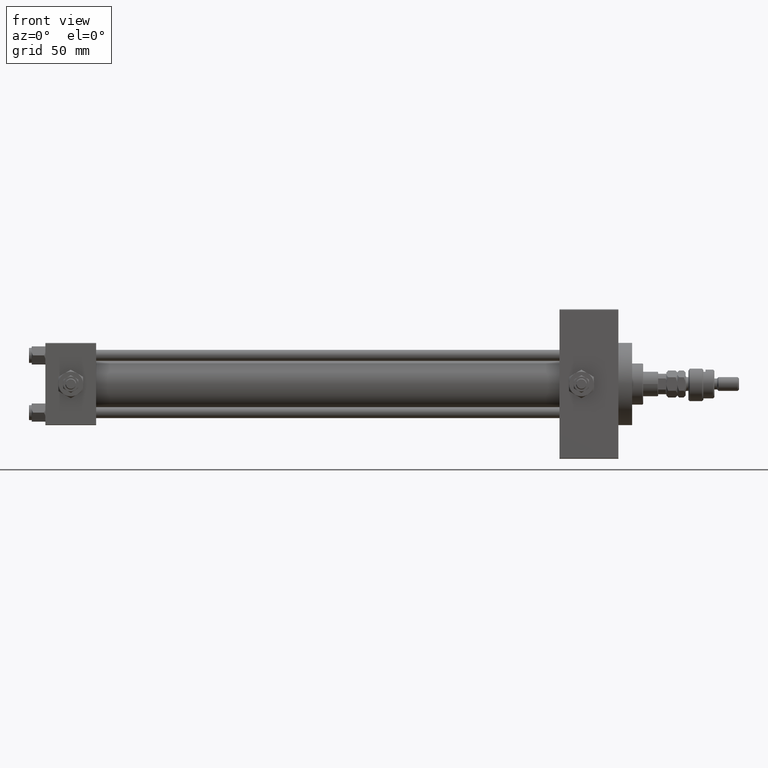
[diagram: clean part render]
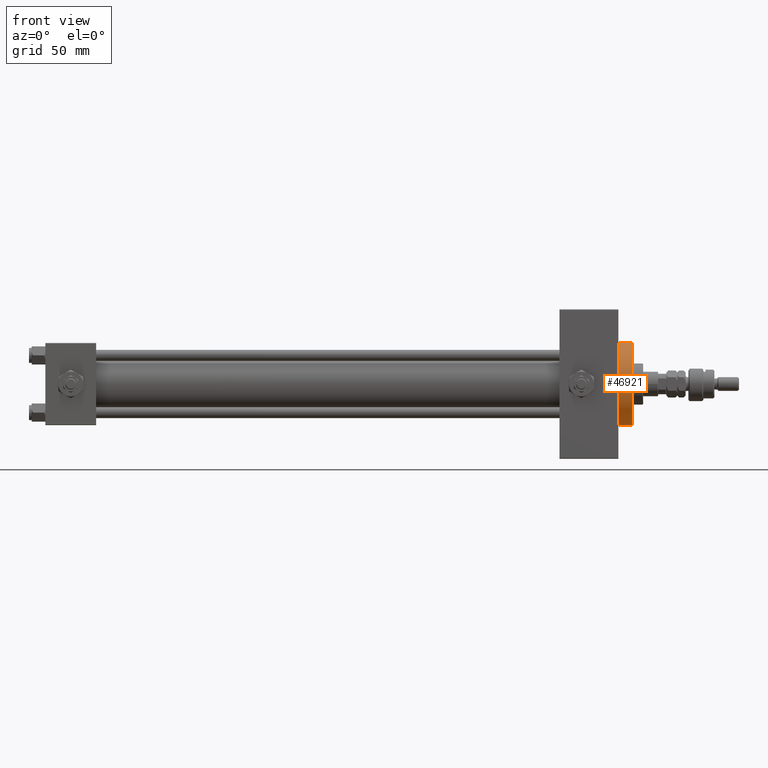
[diagram: same view with one face highlighted and labeled with its STEP entity id]
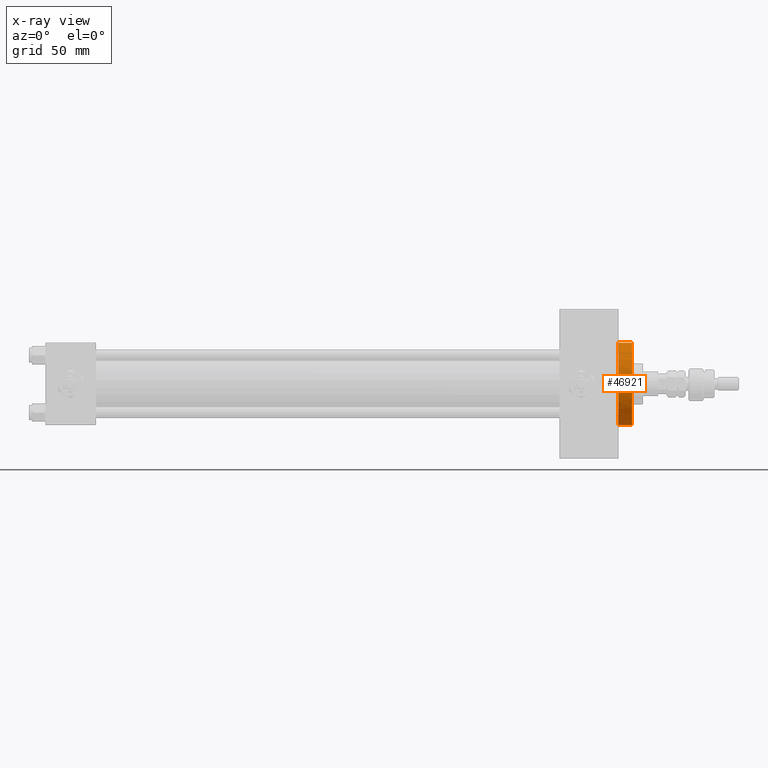
[diagram: x-ray of the same camera — body ghosted, the highlighted face saturated]
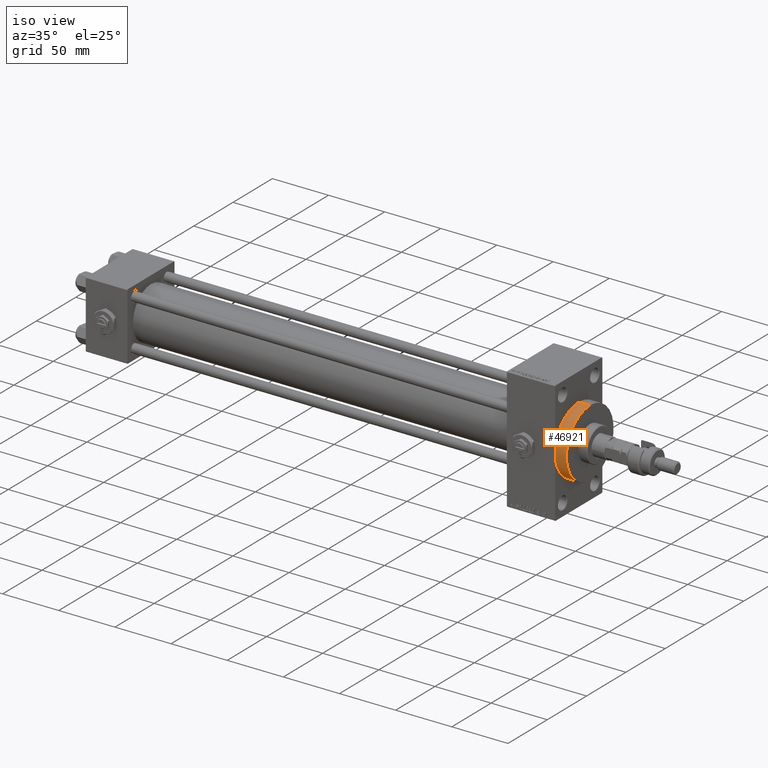
[diagram: same view with one face highlighted and labeled with its STEP entity id]
A machine part, front view. The second image highlights one B-rep face of the part: STEP entity #46921.
The next image is the same camera in x-ray: the body ghosted, the highlighted face saturated — about 0% of this face is hidden behind the body in this view.
A second angle (iso view) of the same face is appended — the face is thin or edge-on in the first view.
In plain terms, the highlighted cylindrical surface (partial cylindrical patch) has radius 30 mm, axis along (-1, -0, -0).
Its self-contained STEP definition (entity closure, byte-faithful):
#910 = CARTESIAN_POINT ( 'NONE',  ( 418.0000000000000000, 0.000000000000000000, 0.000000000000000000 ) ) ;
#2996 = VERTEX_POINT ( 'NONE', #30648 ) ;
#5102 = CARTESIAN_POINT ( 'NONE',  ( 428.0000000000000000, 0.000000000000000000, 30.00000000000000000 ) ) ;
#5960 = VERTEX_POINT ( 'NONE', #5102 ) ;
#6351 = AXIS2_PLACEMENT_3D ( 'NONE', #910, #16998, #9347 ) ;
#6657 = EDGE_CURVE ( 'NONE', #39877, #41133, #48592, .T. ) ;
#7053 = DIRECTION ( 'NONE',  ( 0.000000000000000000, 0.000000000000000000, -1.000000000000000000 ) ) ;
#8886 = CIRCLE ( 'NONE', #22487, 30.00000000000000000 ) ;
#9347 = DIRECTION ( 'NONE',  ( 0.000000000000000000, 0.000000000000000000, -1.000000000000000000 ) ) ;
#10084 = DIRECTION ( 'NONE',  ( -1.000000000000000000, -0.000000000000000000, -0.000000000000000000 ) ) ;
#11369 = VECTOR ( 'NONE', #36469, 1000.000000000000000 ) ;
#12239 = CIRCLE ( 'NONE', #6351, 30.00000000000000000 ) ;
#13215 = ORIENTED_EDGE ( 'NONE', *, *, #47724, .F. ) ;
#13518 = CARTESIAN_POINT ( 'NONE',  ( 428.0000000000000000, 0.000000000000000000, 30.00000000000000000 ) ) ;
#16711 = CIRCLE ( 'NONE', #20097, 30.00000000000000000 ) ;
#16998 = DIRECTION ( 'NONE',  ( 1.000000000000000000, 0.000000000000000000, 0.000000000000000000 ) ) ;
#17067 = EDGE_CURVE ( 'NONE', #2996, #35379, #16711, .T. ) ;
#17406 = ORIENTED_EDGE ( 'NONE', *, *, #17067, .T. ) ;
#20097 = AXIS2_PLACEMENT_3D ( 'NONE', #46837, #34728, #7053 ) ;
#22342 = CARTESIAN_POINT ( 'NONE',  ( 428.0000000000000000, 3.673940397442059178E-15, -30.00000000000000000 ) ) ;
#22487 = AXIS2_PLACEMENT_3D ( 'NONE', #27979, #28740, #40589 ) ;
#27135 = CARTESIAN_POINT ( 'NONE',  ( 428.0000000000000000, 0.000000000000000000, 0.000000000000000000 ) ) ;
#27979 = CARTESIAN_POINT ( 'NONE',  ( 428.0000000000000000, 0.000000000000000000, 0.000000000000000000 ) ) ;
#28740 = DIRECTION ( 'NONE',  ( 1.000000000000000000, 0.000000000000000000, 0.000000000000000000 ) ) ;
#30052 = CARTESIAN_POINT ( 'NONE',  ( 418.0000000000000000, -30.00000000000000000, 0.000000000000000000 ) ) ;
#30550 = FACE_OUTER_BOUND ( 'NONE', #49613, .T. ) ;
#30648 = CARTESIAN_POINT ( 'NONE',  ( 418.0000000000000000, 0.000000000000000000, 30.00000000000000000 ) ) ;
#30810 = DIRECTION ( 'NONE',  ( -1.000000000000000000, -0.000000000000000000, -0.000000000000000000 ) ) ;
#30811 = ORIENTED_EDGE ( 'NONE', *, *, #6657, .F. ) ;
#30855 = VECTOR ( 'NONE', #10084, 1000.000000000000000 ) ;
#32434 = EDGE_CURVE ( 'NONE', #35379, #41133, #12239, .T. ) ;
#33024 = CARTESIAN_POINT ( 'NONE',  ( 428.0000000000000000, 3.673940397442059178E-15, -30.00000000000000000 ) ) ;
#34728 = DIRECTION ( 'NONE',  ( 1.000000000000000000, 0.000000000000000000, 0.000000000000000000 ) ) ;
#34777 = CYLINDRICAL_SURFACE ( 'NONE', #49360, 30.00000000000000000 ) ;
#35379 = VERTEX_POINT ( 'NONE', #30052 ) ;
#36046 = ORIENTED_EDGE ( 'NONE', *, *, #46534, .T. ) ;
#36469 = DIRECTION ( 'NONE',  ( -1.000000000000000000, -0.000000000000000000, -0.000000000000000000 ) ) ;
#36535 = ORIENTED_EDGE ( 'NONE', *, *, #32434, .T. ) ;
#39877 = VERTEX_POINT ( 'NONE', #22342 ) ;
#40589 = DIRECTION ( 'NONE',  ( 0.000000000000000000, 0.000000000000000000, -1.000000000000000000 ) ) ;
#41133 = VERTEX_POINT ( 'NONE', #47048 ) ;
#42196 = LINE ( 'NONE', #13518, #30855 ) ;
#46534 = EDGE_CURVE ( 'NONE', #5960, #2996, #42196, .T. ) ;
#46837 = CARTESIAN_POINT ( 'NONE',  ( 418.0000000000000000, 0.000000000000000000, 0.000000000000000000 ) ) ;
#46921 = ADVANCED_FACE ( 'NONE', ( #30550 ), #34777, .T. ) ;
#47048 = CARTESIAN_POINT ( 'NONE',  ( 418.0000000000000000, 3.673940397442059178E-15, -30.00000000000000000 ) ) ;
#47724 = EDGE_CURVE ( 'NONE', #5960, #39877, #8886, .T. ) ;
#48592 = LINE ( 'NONE', #33024, #11369 ) ;
#49360 = AXIS2_PLACEMENT_3D ( 'NONE', #27135, #30810, #51361 ) ;
#49613 = EDGE_LOOP ( 'NONE', ( #30811, #13215, #36046, #17406, #36535 ) ) ;
#51361 = DIRECTION ( 'NONE',  ( 0.000000000000000000, 0.000000000000000000, 1.000000000000000000 ) ) ;